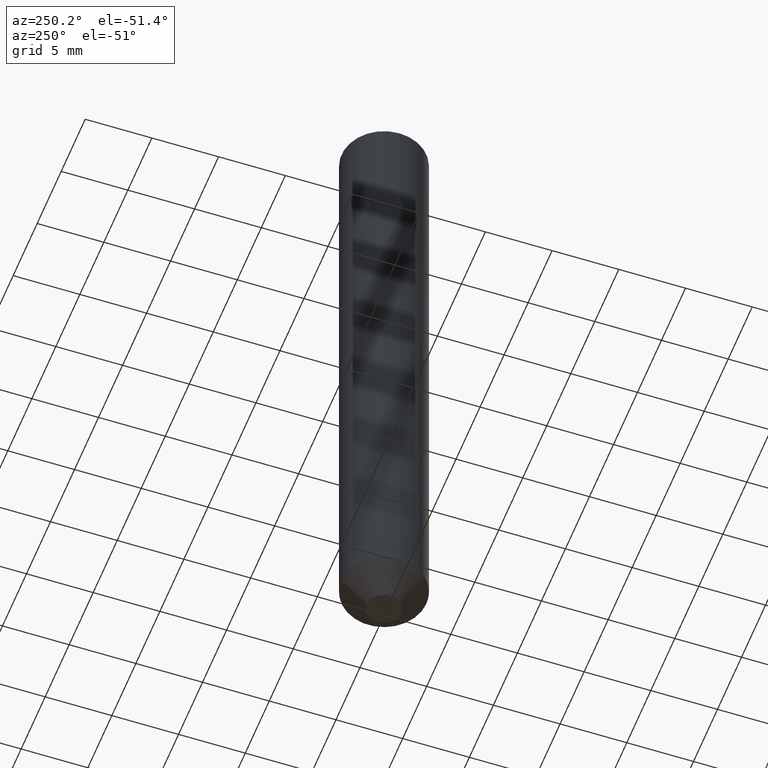
[diagram: clean part render]
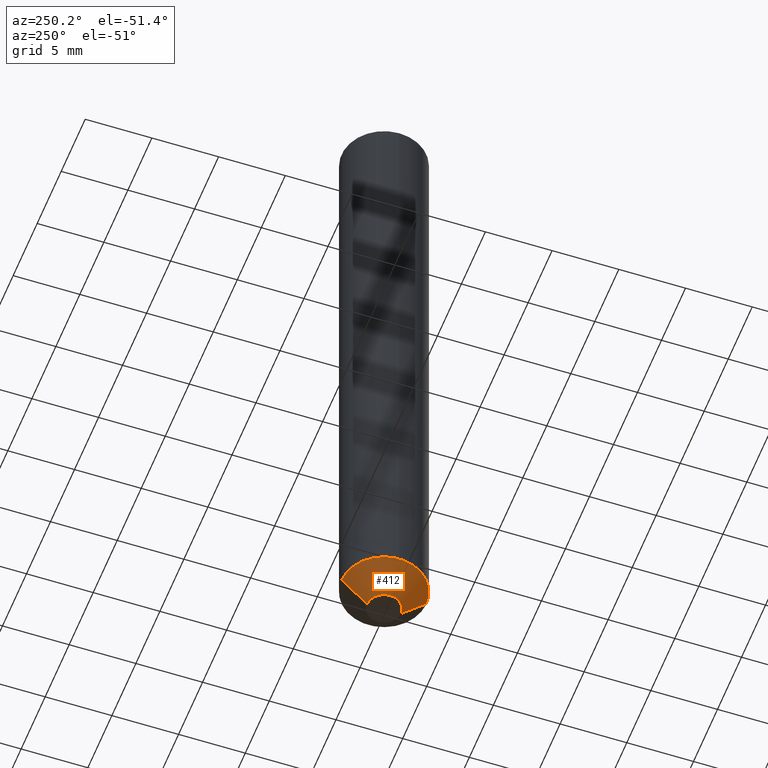
[diagram: same view with one face highlighted and labeled with its STEP entity id]
A machine part, auxiliary view. The second image highlights one B-rep face of the part: STEP entity #412.
In plain terms, the highlighted conical surface has half-angle 45.192 deg.
Its self-contained STEP definition (entity closure, byte-faithful):
#35 = DIRECTION ( 'NONE',  ( 6.982962677686266711E-15, 1.000000000000000000, -5.463695987328525648E-15 ) ) ;
#42 = ORIENTED_EDGE ( 'NONE', *, *, #179, .F. ) ;
#43 = CARTESIAN_POINT ( 'NONE',  ( 8.728703347108306705E-16, 0.1249999999999933248, -1.925499999999999989 ) ) ;
#45 = CARTESIAN_POINT ( 'NONE',  ( -6.110092342975009069E-16, -0.05000000000000699718, -1.999999999999999778 ) ) ;
#69 = DIRECTION ( 'NONE',  ( 2.439620483180574528E-29, -3.499856470251552244E-15, -1.000000000000000000 ) ) ;
#71 = CARTESIAN_POINT ( 'NONE',  ( 8.881784197001733529E-16, 0.1249999999999934358, -1.925499999999999989 ) ) ;
#79 = CARTESIAN_POINT ( 'NONE',  ( -8.575622497213960858E-16, -0.1250000000000070222, -1.925499999999998879 ) ) ;
#86 = VERTEX_POINT ( 'NONE', #79 ) ;
#96 = ORIENTED_EDGE ( 'NONE', *, *, #329, .T. ) ;
#123 = VERTEX_POINT ( 'NONE', #279 ) ;
#130 = DIRECTION ( 'NONE',  ( 5.041071339380618212E-15, 0.7094677189244624760, 0.7047379341316314383 ) ) ;
#132 = DIRECTION ( 'NONE',  ( 6.982962677686265922E-15, 1.000000000000000000, -4.370956789862815627E-15 ) ) ;
#137 = DIRECTION ( 'NONE',  ( -4.954186602272732689E-15, -0.7094677189244577020, 0.7047379341316364343 ) ) ;
#155 = CARTESIAN_POINT ( 'NONE',  ( 4.708747262147976865E-29, -6.722851505508178377E-15, -1.925499999999999545 ) ) ;
#179 = EDGE_CURVE ( 'NONE', #123, #397, #360, .T. ) ;
#203 = EDGE_CURVE ( 'NONE', #246, #123, #394, .T. ) ;
#208 = CARTESIAN_POINT ( 'NONE',  ( -8.728703347107373877E-16, -0.1250000000000068834, -1.925499999999998879 ) ) ;
#217 = AXIS2_PLACEMENT_3D ( 'NONE', #155, #291, #132 ) ;
#238 = VECTOR ( 'NONE', #130, 39.37007874015748854 ) ;
#241 = LINE ( 'NONE', #208, #253 ) ;
#246 = VERTEX_POINT ( 'NONE', #45 ) ;
#253 = VECTOR ( 'NONE', #137, 39.37007874015748143 ) ;
#271 = ORIENTED_EDGE ( 'NONE', *, *, #203, .F. ) ;
#278 = DIRECTION ( 'NONE',  ( -6.982962677686265922E-15, -1.000000000000000000, 4.370956789862815627E-15 ) ) ;
#279 = CARTESIAN_POINT ( 'NONE',  ( 6.217248937901361381E-16, 0.04999999999999302919, -2.000000000000000444 ) ) ;
#291 = DIRECTION ( 'NONE',  ( 2.439620483180574528E-29, -3.499856470251552244E-15, -1.000000000000000000 ) ) ;
#298 = AXIS2_PLACEMENT_3D ( 'NONE', #364, #69, #35 ) ;
#305 = AXIS2_PLACEMENT_3D ( 'NONE', #409, #345, #278 ) ;
#314 = ORIENTED_EDGE ( 'NONE', *, *, #385, .T. ) ;
#329 = EDGE_CURVE ( 'NONE', #246, #86, #241, .T. ) ;
#345 = DIRECTION ( 'NONE',  ( -2.439620483180574528E-29, 3.499856470251552244E-15, 1.000000000000000000 ) ) ;
#355 = EDGE_LOOP ( 'NONE', ( #42, #271, #96, #314 ) ) ;
#360 = LINE ( 'NONE', #71, #238 ) ;
#364 = CARTESIAN_POINT ( 'NONE',  ( 4.890498988144930849E-29, -6.983590812541921448E-15, -2.000000000000000000 ) ) ;
#371 = FACE_OUTER_BOUND ( 'NONE', #355, .T. ) ;
#382 = CONICAL_SURFACE ( 'NONE', #305, 0.1250000000000001665, 0.7887426325329172094 ) ;
#385 = EDGE_CURVE ( 'NONE', #86, #397, #405, .T. ) ;
#394 = CIRCLE ( 'NONE', #298, 0.05000000000000000971 ) ;
#397 = VERTEX_POINT ( 'NONE', #43 ) ;
#405 = CIRCLE ( 'NONE', #217, 0.1250000000000001665 ) ;
#409 = CARTESIAN_POINT ( 'NONE',  ( 4.708747262147976865E-29, -6.722851505508178377E-15, -1.925499999999999545 ) ) ;
#412 = ADVANCED_FACE ( 'NONE', ( #371 ), #382, .T. ) ;